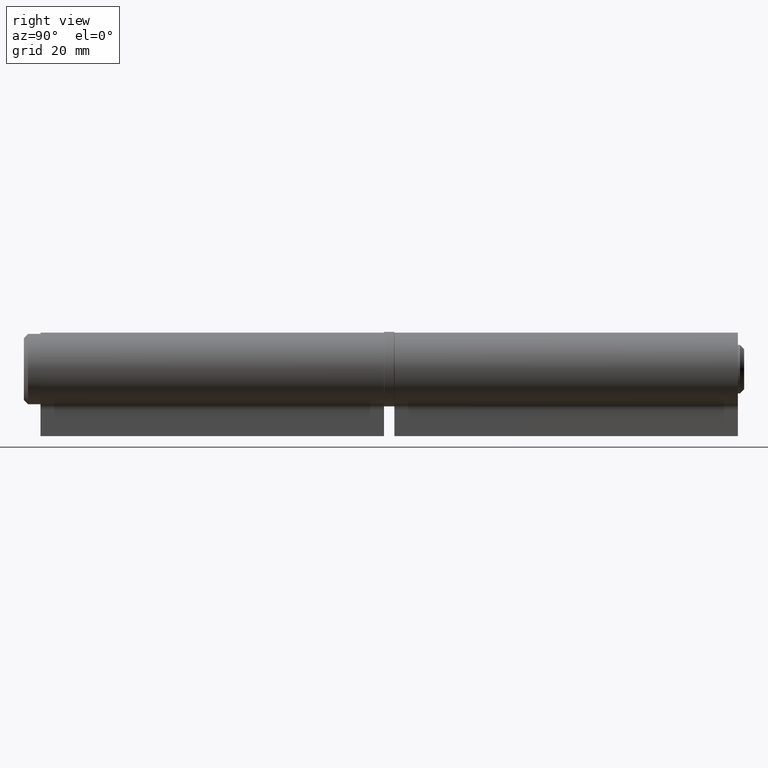
[diagram: clean part render]
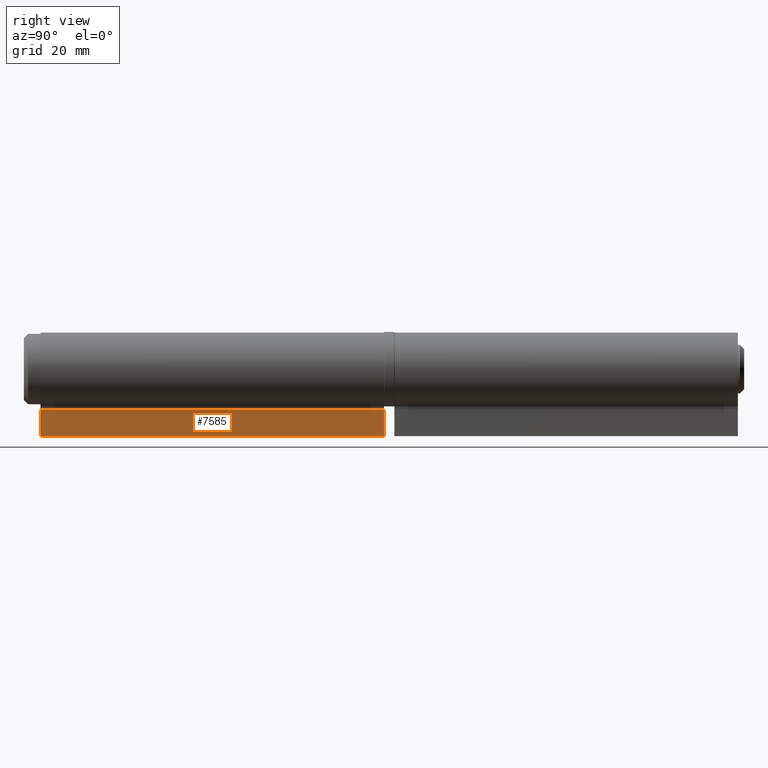
[diagram: same view with one face highlighted and labeled with its STEP entity id]
A machine part, right view. The second image highlights one B-rep face of the part: STEP entity #7585.
In plain terms, the highlighted planar face has unit normal (-1, 0, -0).
Its self-contained STEP definition (entity closure, byte-faithful):
#738 = LINE ( 'NONE', #5725, #10954 ) ;
#744 = EDGE_CURVE ( 'NONE', #10436, #4207, #738, .T. ) ;
#1083 = EDGE_LOOP ( 'NONE', ( #12163, #5447, #9429, #11938 ) ) ;
#2121 = CARTESIAN_POINT ( 'NONE',  ( 2.550000000000000711, 41.50000000000000000, -16.19999999999999929 ) ) ;
#2169 = EDGE_CURVE ( 'NONE', #4590, #4207, #12955, .T. ) ;
#2701 = CARTESIAN_POINT ( 'NONE',  ( 2.549999999999999822, -41.50000000000000000, -9.794769012079866499 ) ) ;
#3105 = DIRECTION ( 'NONE',  ( 1.354145915462211916E-16, -0.000000000000000000, -1.000000000000000000 ) ) ;
#3135 = DIRECTION ( 'NONE',  ( -1.000000000000000000, 0.000000000000000000, -1.354145915462211916E-16 ) ) ;
#4207 = VERTEX_POINT ( 'NONE', #6081 ) ;
#4590 = VERTEX_POINT ( 'NONE', #2701 ) ;
#4724 = CARTESIAN_POINT ( 'NONE',  ( 2.549999999999999822, 41.50000000000000000, -9.794769012079866499 ) ) ;
#4978 = LINE ( 'NONE', #4724, #12290 ) ;
#5038 = CARTESIAN_POINT ( 'NONE',  ( 2.549999999999999822, 41.50000000000000000, -9.794769012079866499 ) ) ;
#5165 = DIRECTION ( 'NONE',  ( -1.354145915462211916E-16, 0.000000000000000000, 1.000000000000000000 ) ) ;
#5214 = PLANE ( 'NONE',  #10832 ) ;
#5447 = ORIENTED_EDGE ( 'NONE', *, *, #744, .F. ) ;
#5725 = CARTESIAN_POINT ( 'NONE',  ( 2.550000000000000711, 41.50000000000000000, -16.19999999999999929 ) ) ;
#6081 = CARTESIAN_POINT ( 'NONE',  ( 2.550000000000000711, -41.50000000000000000, -16.19999999999999929 ) ) ;
#6692 = CARTESIAN_POINT ( 'NONE',  ( 2.550000000000000711, 41.50000000000000000, -16.19999999999999929 ) ) ;
#7300 = VECTOR ( 'NONE', #3105, 1000.000000000000000 ) ;
#7585 = ADVANCED_FACE ( 'NONE', ( #12109 ), #5214, .F. ) ;
#8325 = CARTESIAN_POINT ( 'NONE',  ( 2.550000000000000711, 41.50000000000000000, -16.19999999999999929 ) ) ;
#8662 = EDGE_CURVE ( 'NONE', #8776, #4590, #4978, .T. ) ;
#8776 = VERTEX_POINT ( 'NONE', #5038 ) ;
#8921 = EDGE_CURVE ( 'NONE', #8776, #10436, #9418, .T. ) ;
#9279 = VECTOR ( 'NONE', #13025, 1000.000000000000000 ) ;
#9418 = LINE ( 'NONE', #6692, #9279 ) ;
#9429 = ORIENTED_EDGE ( 'NONE', *, *, #8921, .F. ) ;
#10089 = DIRECTION ( 'NONE',  ( -0.000000000000000000, -1.000000000000000000, -0.000000000000000000 ) ) ;
#10436 = VERTEX_POINT ( 'NONE', #8325 ) ;
#10832 = AXIS2_PLACEMENT_3D ( 'NONE', #2121, #3135, #5165 ) ;
#10954 = VECTOR ( 'NONE', #11962, 1000.000000000000000 ) ;
#11938 = ORIENTED_EDGE ( 'NONE', *, *, #8662, .T. ) ;
#11962 = DIRECTION ( 'NONE',  ( -0.000000000000000000, -1.000000000000000000, -0.000000000000000000 ) ) ;
#12109 = FACE_OUTER_BOUND ( 'NONE', #1083, .T. ) ;
#12163 = ORIENTED_EDGE ( 'NONE', *, *, #2169, .T. ) ;
#12290 = VECTOR ( 'NONE', #10089, 1000.000000000000000 ) ;
#12955 = LINE ( 'NONE', #13674, #7300 ) ;
#13025 = DIRECTION ( 'NONE',  ( 1.354145915462211916E-16, -0.000000000000000000, -1.000000000000000000 ) ) ;
#13674 = CARTESIAN_POINT ( 'NONE',  ( 2.550000000000000711, -41.50000000000000000, -16.19999999999999929 ) ) ;